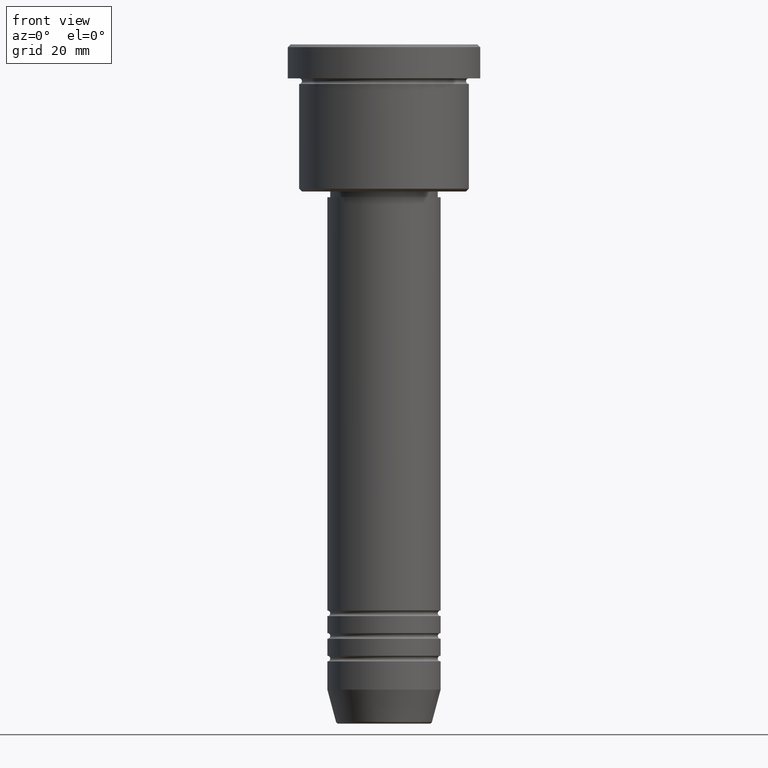
[diagram: clean part render]
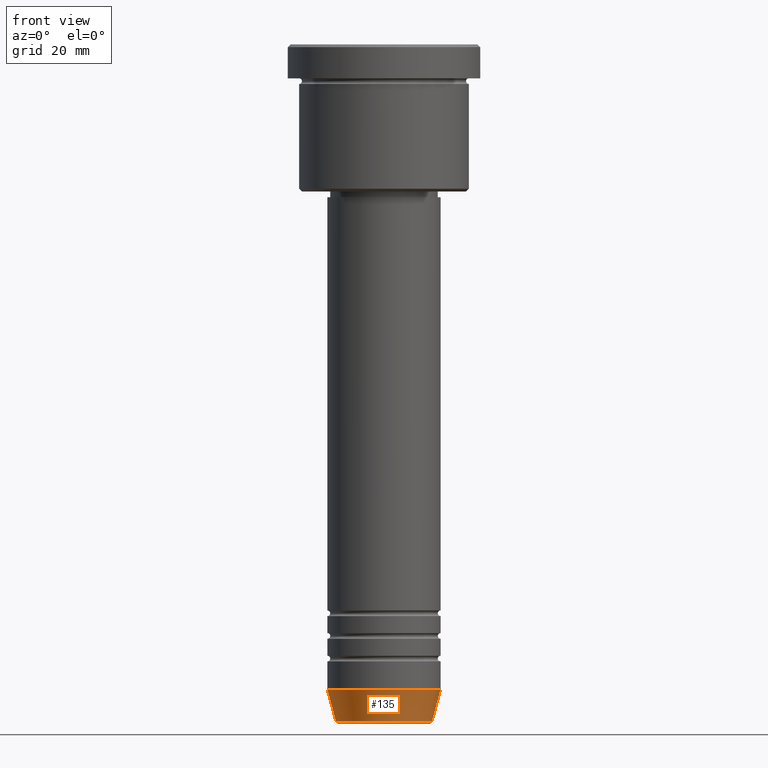
[diagram: same view with one face highlighted and labeled with its STEP entity id]
A machine part, front view. The second image highlights one B-rep face of the part: STEP entity #135.
In plain terms, the highlighted conical surface has half-angle 15 deg.
Its self-contained STEP definition (entity closure, byte-faithful):
#1 = CIRCLE ( 'NONE', #674, 10.00000000000000178 ) ;
#120 = EDGE_CURVE ( 'NONE', #651, #206, #1053, .T. ) ;
#130 = VERTEX_POINT ( 'NONE', #977 ) ;
#132 = CONICAL_SURFACE ( 'NONE', #190, 10.00000000000000178, 0.2617993877991501295 ) ;
#135 = ADVANCED_FACE ( 'NONE', ( #715 ), #132, .T. ) ;
#142 = EDGE_CURVE ( 'NONE', #206, #130, #1, .T. ) ;
#156 = DIRECTION ( 'NONE',  ( 1.000000000000000000, 0.000000000000000000, 0.000000000000000000 ) ) ;
#173 = CIRCLE ( 'NONE', #325, 8.491604264568312743 ) ;
#190 = AXIS2_PLACEMENT_3D ( 'NONE', #256, #972, #245 ) ;
#206 = VERTEX_POINT ( 'NONE', #448 ) ;
#233 = ORIENTED_EDGE ( 'NONE', *, *, #142, .F. ) ;
#234 = CARTESIAN_POINT ( 'NONE',  ( -8.491604264568312743, 1.132284198685156781E-15, -119.6294095225512564 ) ) ;
#245 = DIRECTION ( 'NONE',  ( 1.000000000000000000, 0.000000000000000000, 0.000000000000000000 ) ) ;
#256 = CARTESIAN_POINT ( 'NONE',  ( 0.000000000000000000, 0.000000000000000000, -113.9999999999999858 ) ) ;
#313 = VECTOR ( 'NONE', #512, 1000.000000000000000 ) ;
#325 = AXIS2_PLACEMENT_3D ( 'NONE', #1039, #949, #844 ) ;
#343 = ORIENTED_EDGE ( 'NONE', *, *, #835, .T. ) ;
#370 = VERTEX_POINT ( 'NONE', #894 ) ;
#401 = VECTOR ( 'NONE', #407, 1000.000000000000000 ) ;
#407 = DIRECTION ( 'NONE',  ( 0.2588190451025214056, 0.000000000000000000, 0.9659258262890680902 ) ) ;
#427 = CARTESIAN_POINT ( 'NONE',  ( -10.00000000000000178, 1.224646799147353454E-15, -113.9999999999999858 ) ) ;
#444 = EDGE_CURVE ( 'NONE', #370, #130, #937, .T. ) ;
#448 = CARTESIAN_POINT ( 'NONE',  ( -10.00000000000000178, 1.224646799147353454E-15, -113.9999999999999858 ) ) ;
#512 = DIRECTION ( 'NONE',  ( -0.2588190451025214056, 3.169619151431772953E-17, 0.9659258262890680902 ) ) ;
#525 = DIRECTION ( 'NONE',  ( -0.000000000000000000, -0.000000000000000000, 1.000000000000000000 ) ) ;
#607 = ORIENTED_EDGE ( 'NONE', *, *, #444, .T. ) ;
#625 = CARTESIAN_POINT ( 'NONE',  ( 0.000000000000000000, 0.000000000000000000, -113.9999999999999858 ) ) ;
#651 = VERTEX_POINT ( 'NONE', #234 ) ;
#674 = AXIS2_PLACEMENT_3D ( 'NONE', #625, #525, #156 ) ;
#715 = FACE_OUTER_BOUND ( 'NONE', #1033, .T. ) ;
#835 = EDGE_CURVE ( 'NONE', #651, #370, #173, .T. ) ;
#844 = DIRECTION ( 'NONE',  ( 1.000000000000000000, 0.000000000000000000, 0.000000000000000000 ) ) ;
#894 = CARTESIAN_POINT ( 'NONE',  ( 8.491604264568312743, 0.000000000000000000, -119.6294095225512564 ) ) ;
#937 = LINE ( 'NONE', #1012, #401 ) ;
#949 = DIRECTION ( 'NONE',  ( -0.000000000000000000, -0.000000000000000000, 1.000000000000000000 ) ) ;
#972 = DIRECTION ( 'NONE',  ( -0.000000000000000000, -0.000000000000000000, 1.000000000000000000 ) ) ;
#977 = CARTESIAN_POINT ( 'NONE',  ( 10.00000000000000178, 0.000000000000000000, -113.9999999999999858 ) ) ;
#1012 = CARTESIAN_POINT ( 'NONE',  ( 10.00000000000000178, 0.000000000000000000, -113.9999999999999858 ) ) ;
#1033 = EDGE_LOOP ( 'NONE', ( #1094, #343, #607, #233 ) ) ;
#1039 = CARTESIAN_POINT ( 'NONE',  ( 0.000000000000000000, 0.000000000000000000, -119.6294095225512564 ) ) ;
#1053 = LINE ( 'NONE', #427, #313 ) ;
#1094 = ORIENTED_EDGE ( 'NONE', *, *, #120, .F. ) ;